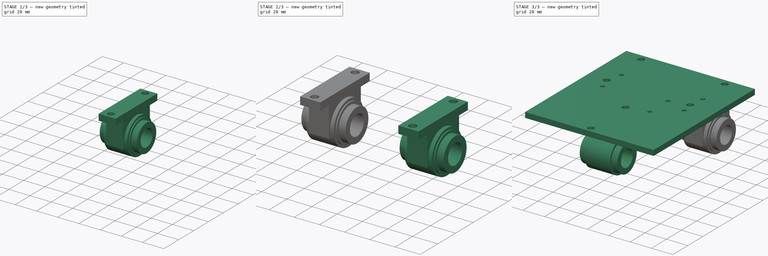
[diagram: build sequence overview — one tinted view per stage of 3, left to right]
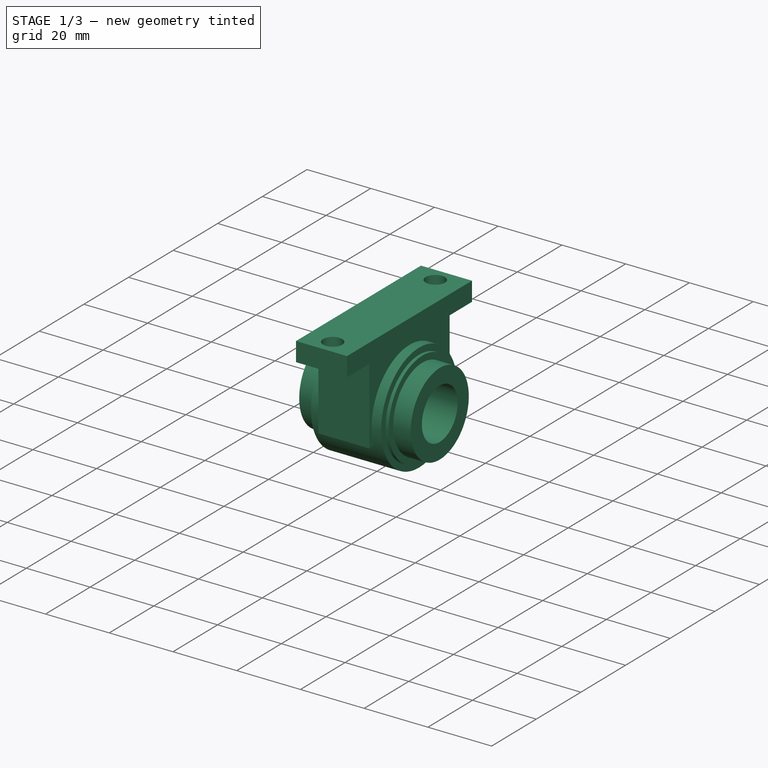
[diagram: stage 1 of 3 — iso view after this stage's code; geometry added in this stage tinted green]
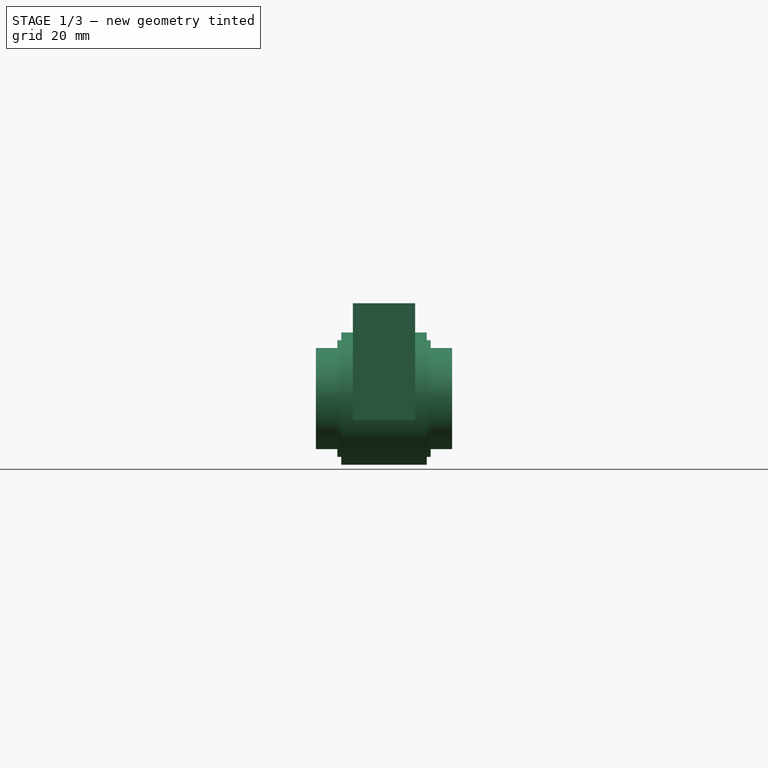
[diagram: stage 1 of 3 — front view after this stage's code; geometry added in this stage tinted green]
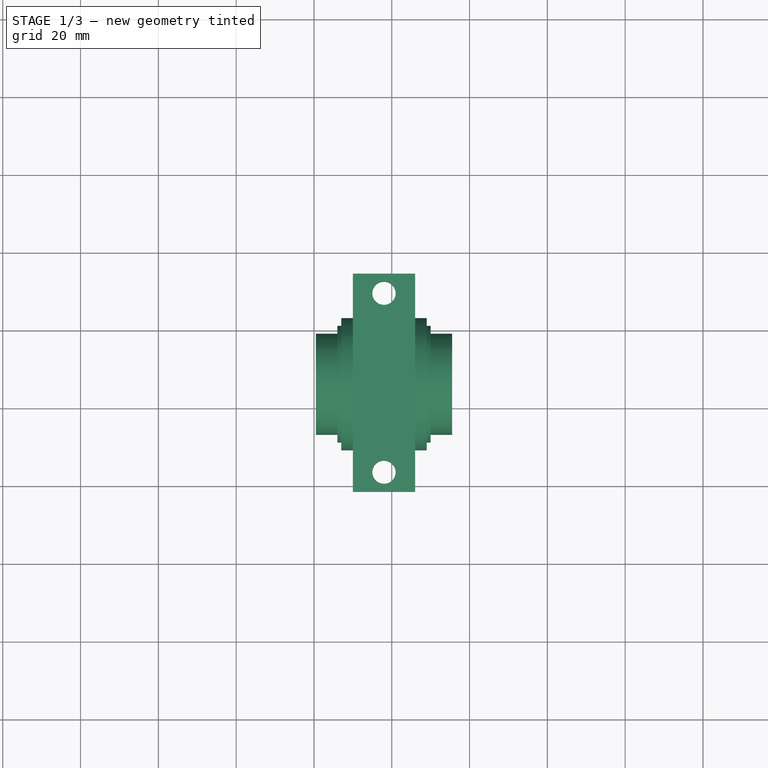
[diagram: stage 1 of 3 — top view after this stage's code; geometry added in this stage tinted green]
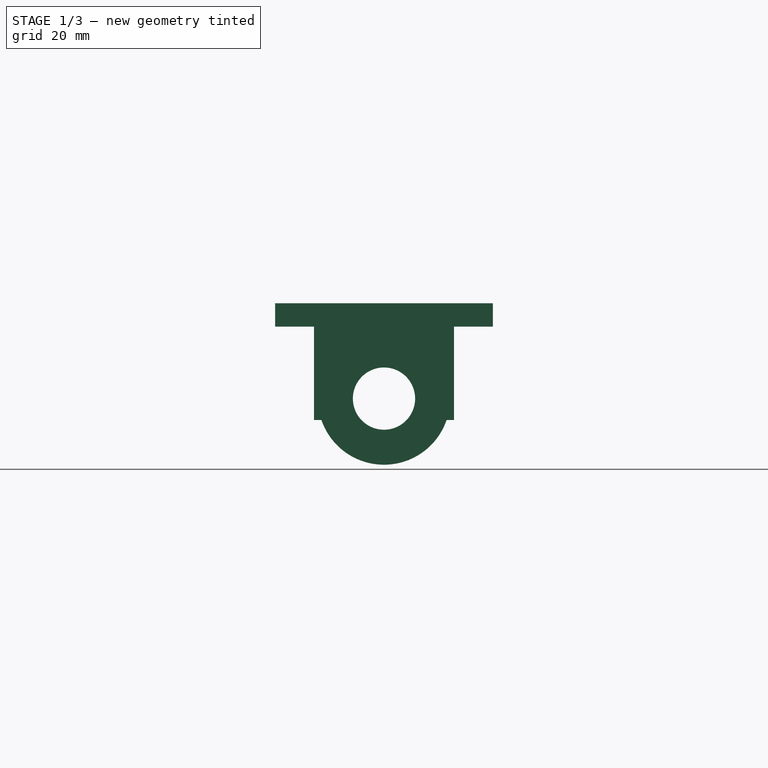
[diagram: stage 1 of 3 — right view after this stage's code; geometry added in this stage tinted green]
FCSTD DOCUMENT  (FreeCAD 0.14R3347 (Git))
Label: Chariot
License: CC-BY 3.0
LicenseURL: http://creativecommons.org/licenses/by/3.0/
objects: PartDesign::Pocket×7, Sketcher::SketchObject×3
note: 17 computed .brp shape members not serialized (recipe doc carries the construction recipe); baked Part::Feature solids carry a one-line shape summary decoded from their .brp

FEATURE [PartDesign::Pocket] Pocket006  label="flasque plastique002"
  Length = 5
  Placement = pos=(18,134,0) rot=(-0.707107,0.707107,0;3.14159rad)
  Sketch = -> Sketch003
  Type = 1
FEATURE [PartDesign::Pocket] Pocket007  label="alu003"
  Length = 5
  Placement = pos=(18,134,0) rot=(-0.707107,0.707107,0;3.14159rad)
  Sketch = -> Sketch004
  Type = 1
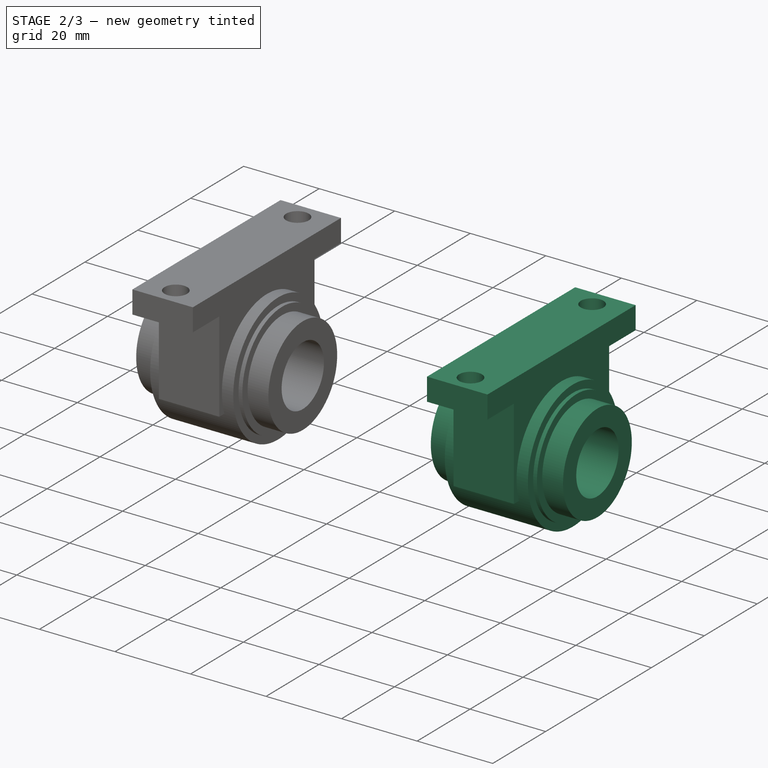
[diagram: stage 2 of 3 — iso view after this stage's code; geometry added in this stage tinted green]
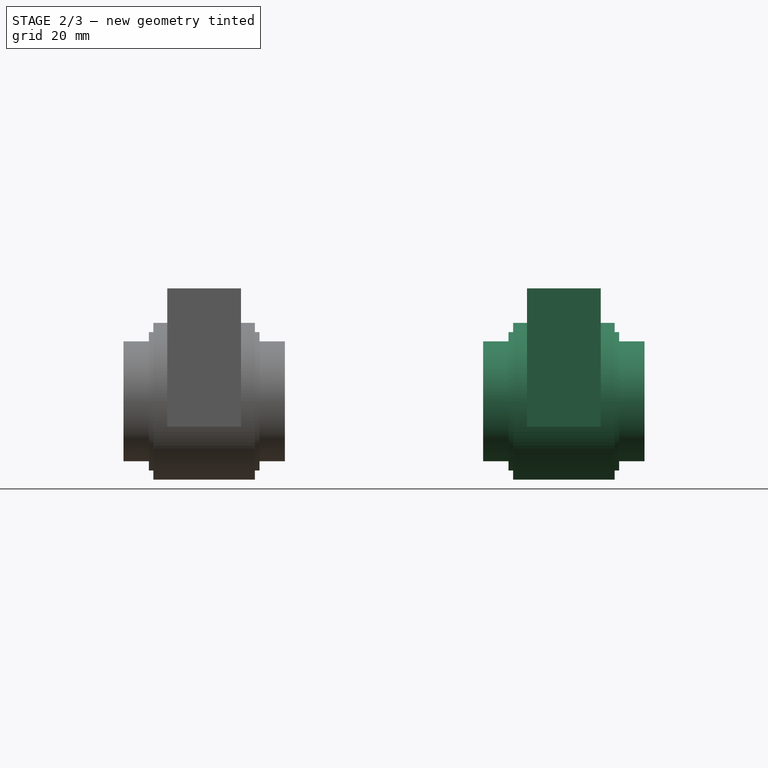
[diagram: stage 2 of 3 — front view after this stage's code; geometry added in this stage tinted green]
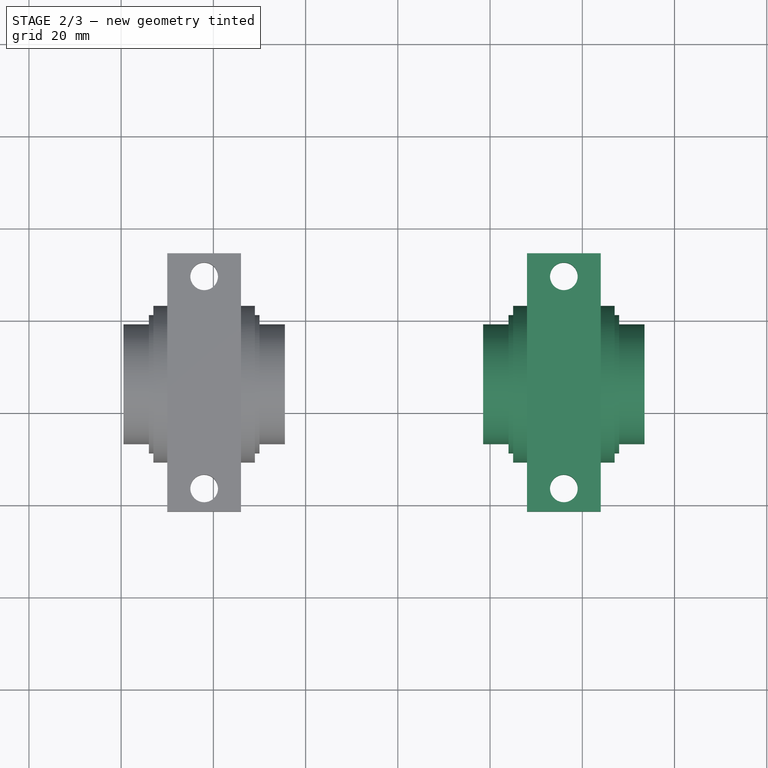
[diagram: stage 2 of 3 — top view after this stage's code; geometry added in this stage tinted green]
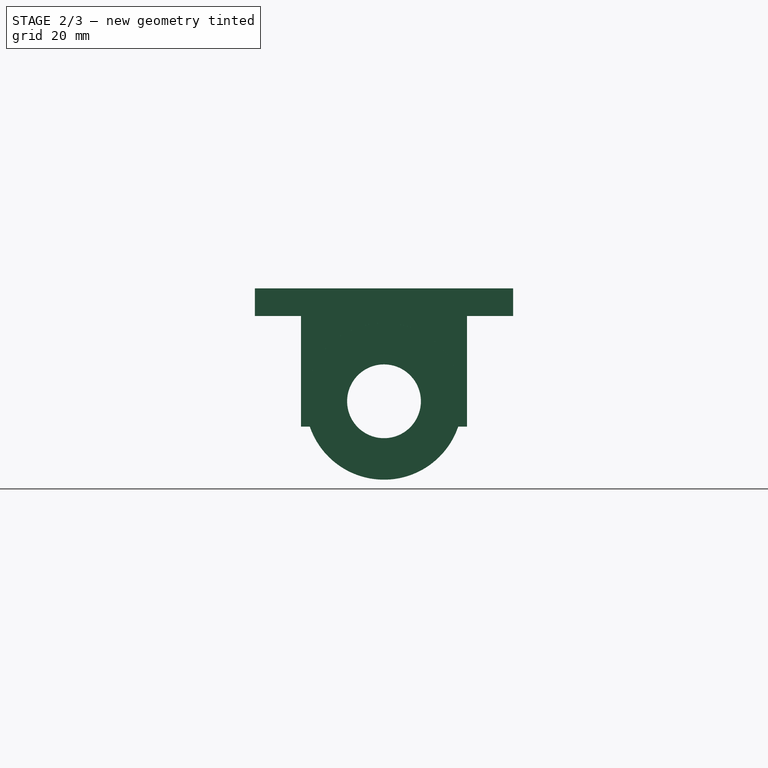
[diagram: stage 2 of 3 — right view after this stage's code; geometry added in this stage tinted green]
FEATURE [PartDesign::Pocket] Pocket004  label="flasque plastique001"
  Length = 5
  Placement = pos=(96,134,0) rot=(-0.707107,0.707107,0;3.14159rad)
  Sketch = -> Sketch003
  Type = 1
FEATURE [PartDesign::Pocket] Pocket002  label="alu001"
  Length = 5
  Placement = pos=(58,56,0) rot=(-0.707107,0.707107,0;3.14159rad)
  Sketch = -> Sketch004
  Type = 1
FEATURE [Sketcher::SketchObject] Sketch004
  Placement = pos=(0,0,6) rot=(0,0,1;0rad)
  Support = -> Pocket002 [Face8]
  sketch-geometry (1):
    g0: Circle CenterX=51 CenterY=0 CenterZ=0 NormalX=0 NormalY=0 NormalZ=1 Radius=3
  constraints (3):
    c: PointOnObject(g0,g-1)
    c: Radius(g0) = 3
    c: DistanceX(g-1,g0) = 51
FEATURE [PartDesign::Pocket] Pocket005  label="alu002"
  Length = 5
  Placement = pos=(96,134,0) rot=(-0.707107,0.707107,0;3.14159rad)
  Sketch = -> Sketch004
  Type = 1
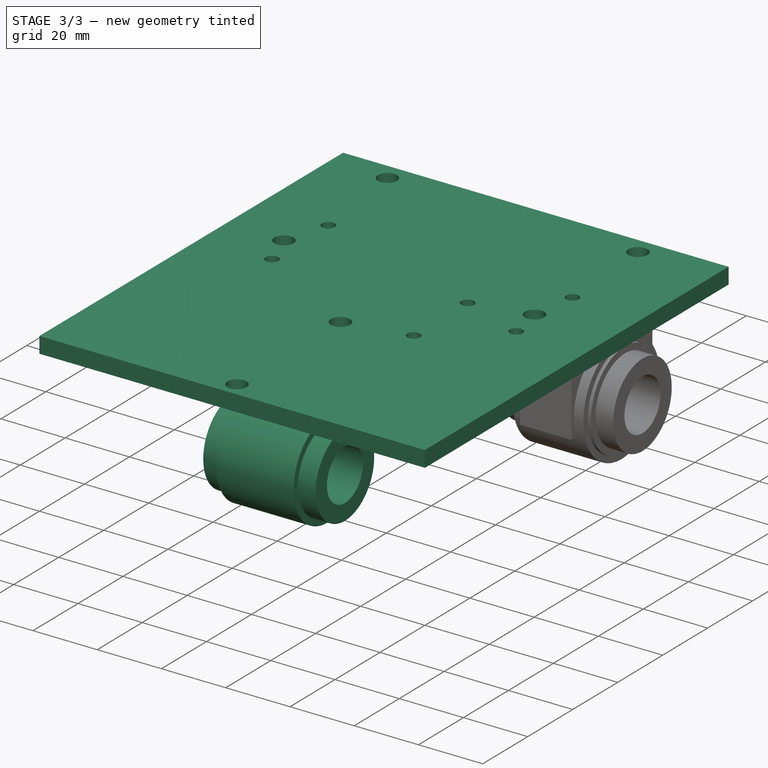
[diagram: stage 3 of 3 — iso view after this stage's code; geometry added in this stage tinted green]
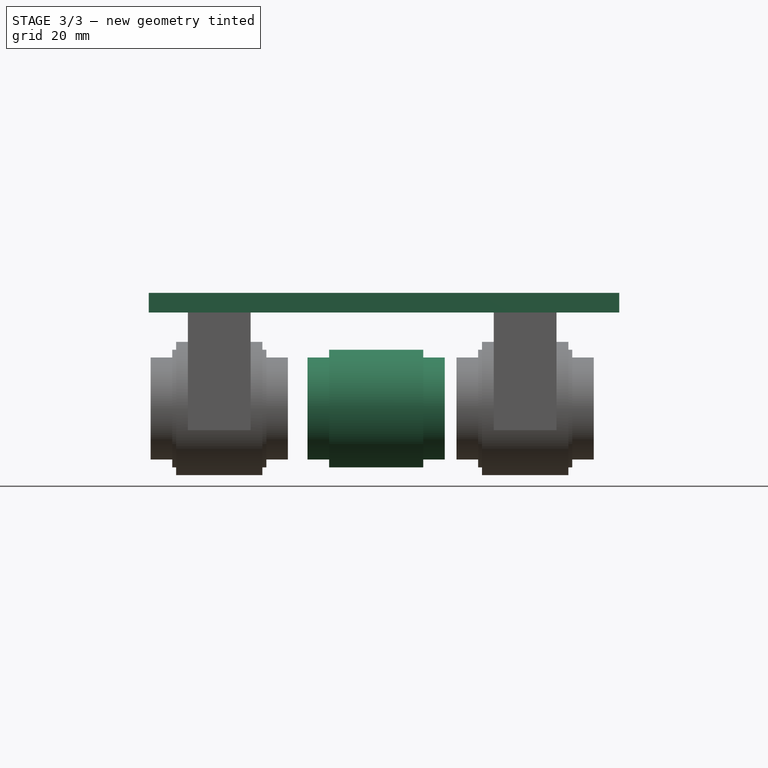
[diagram: stage 3 of 3 — front view after this stage's code; geometry added in this stage tinted green]
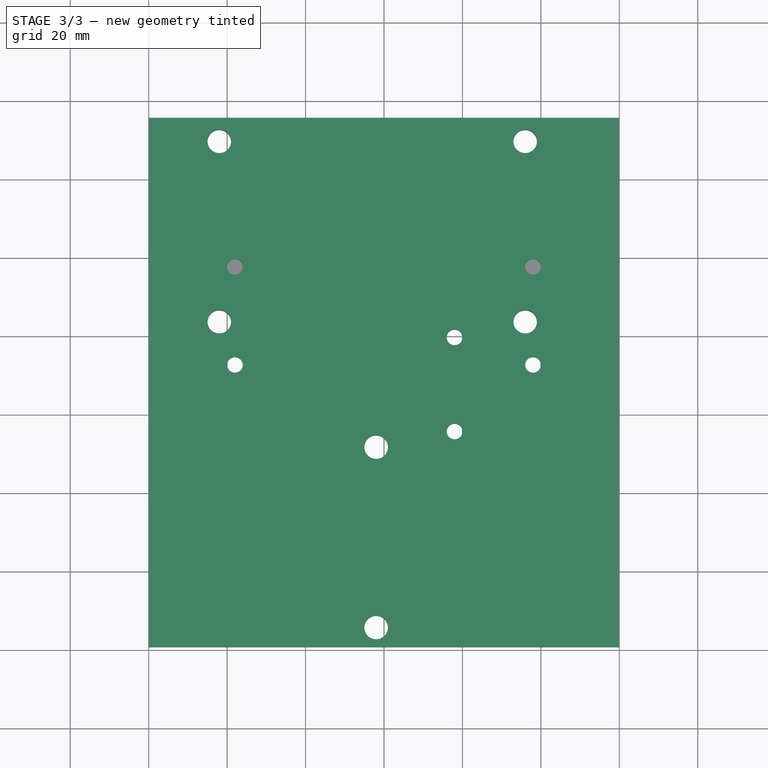
[diagram: stage 3 of 3 — top view after this stage's code; geometry added in this stage tinted green]
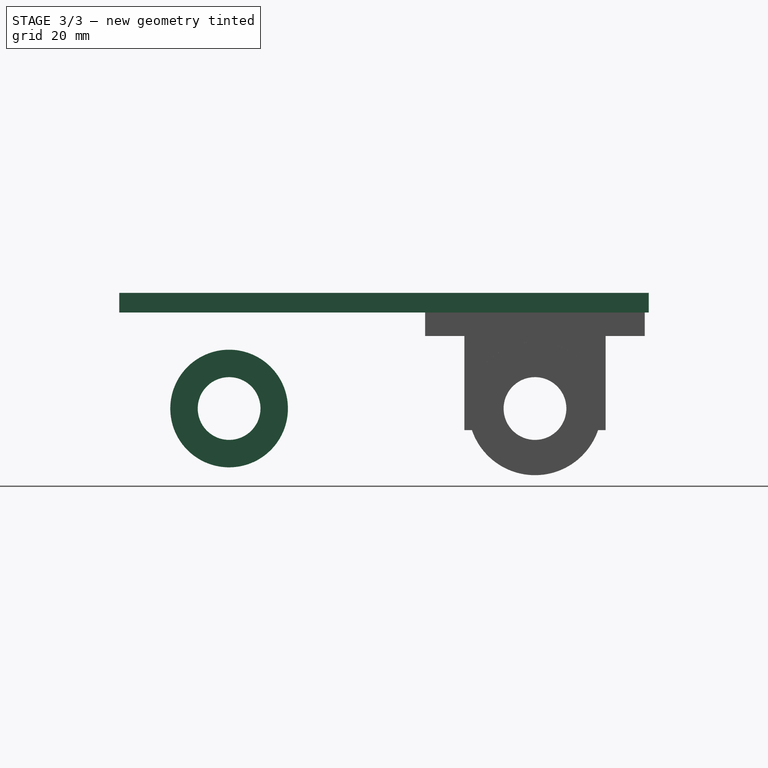
[diagram: stage 3 of 3 — right view after this stage's code; geometry added in this stage tinted green]
FEATURE [Sketcher::SketchObject] Sketch
  Placement = pos=(0,0,5) rot=(0,0,1;0rad)
  sketch-geometry (19):
    g0: LineSegment [constr] StartX=0 StartY=97 StartZ=0 EndX=120 EndY=97 EndZ=0
    g1: LineSegment [constr] StartX=0 StartY=5 StartZ=0 EndX=120 EndY=5 EndZ=0
    g2: LineSegment [constr] StartX=0 StartY=51 StartZ=0 EndX=120 EndY=51 EndZ=0
    g3: LineSegment [constr] StartX=0 StartY=72 StartZ=0 EndX=120 EndY=72 EndZ=0
    g4: LineSegment [constr] StartX=0 StartY=129 StartZ=0 EndX=120 EndY=129 EndZ=0
    g5: LineSegment [constr] StartX=0 StartY=135 StartZ=0 EndX=120 EndY=135 EndZ=0
    g6: LineSegment StartX=120 StartY=135 StartZ=0 EndX=120 EndY=0 EndZ=0
    g7: Circle CenterX=98 CenterY=97 CenterZ=0 NormalX=0 NormalY=0 NormalZ=1 Radius=2
    g8: Circle CenterX=96 CenterY=129 CenterZ=0 NormalX=0 NormalY=0 NormalZ=1 Radius=3
    g9: Circle CenterX=98 CenterY=72 CenterZ=0 NormalX=0 NormalY=0 NormalZ=1 Radius=2
    g10: Circle CenterX=18 CenterY=129 CenterZ=0 NormalX=0 NormalY=0 NormalZ=1 Radius=3
    g11: Circle CenterX=96 CenterY=83 CenterZ=0 NormalX=0 NormalY=0 NormalZ=1 Radius=3
    g12: Circle CenterX=18 CenterY=83 CenterZ=0 NormalX=0 NormalY=0 NormalZ=1 Radius=3
    g13: Circle CenterX=58 CenterY=5 CenterZ=0 NormalX=0 NormalY=0 NormalZ=1 Radius=3
    g14: Circle CenterX=58 CenterY=51 CenterZ=0 NormalX=0 NormalY=0 NormalZ=1 Radius=3
    g15: Circle CenterX=22 CenterY=97 CenterZ=0 NormalX=0 NormalY=0 NormalZ=1 Radius=2
    g16: Circle CenterX=22 CenterY=72 CenterZ=0 NormalX=0 NormalY=0 NormalZ=1 Radius=2
    g17: Circle CenterX=78 CenterY=79 CenterZ=0 NormalX=0 NormalY=0 NormalZ=1 Radius=2
    g18: Circle CenterX=78 CenterY=55 CenterZ=0 NormalX=0 NormalY=0 NormalZ=1 Radius=2
  constraints (63):
    c: PointOnObject(g0,g-2)
    c: Horizontal(g0)
    c: PointOnObject(g1,g-2)
    c: Horizontal(g1)
    c: PointOnObject(g2,g-2)
    c: Horizontal(g2)
    c: PointOnObject(g3,g-2)
    c: Horizontal(g3)
    c: DistanceY(g-1,g1) = 5
    c: DistanceY(g1,g2) = 46
    c: PointOnObject(g4,g-2)
    c: Horizontal(g4)
    c: PointOnObject(g5,g-2)
    c: Horizontal(g5)
    c: DistanceY(g5) = 135
    c: DistanceY(g5,g4) = -6
    c: DistanceY(g5,g0) = -38
    c: DistanceY(g0,g3) = -25
    c: Coincident(g6,g5)
    c: PointOnObject(g6,g-1)
    c: Vertical(g6)
    c: DistanceX(g-1,g6) = 120
    c: PointOnObject(g1,g6)
    c: PointOnObject(g2,g6)
    c: PointOnObject(g3,g6)
    c: PointOnObject(g0,g6)
    c: PointOnObject(g4,g6)
    c: PointOnObject(g7,g0)
    c: Radius(g7) = 2
    c: PointOnObject(g8,g4)
    c: DistanceX(g8,g5) = 24
    c: DistanceX(g7,g0) = 22
    c: PointOnObject(g9,g3)
    c: DistanceX(g9,g3) = 22
    c: PointOnObject(g10,g4)
    c: Equal(g10,g8)
    c: DistanceX(g10,g4) = -18
    c: DistanceY(g11,g8) = 46
    c: DistanceX(g8,g11) = 0
    c: Equal(g11,g8)
    c: Equal(g9,g7)
    c: Radius(g11) = 3
    c: Equal(g12,g10)
    c: DistanceX(g10,g12) = 0
    c: DistanceY(g10,g12) = -46
    c: PointOnObject(g13,g1)
    c: Equal(g13,g12)
    c: DistanceX(g13,g1) = -58
    c: PointOnObject(g14,g2)
    c: Equal(g14,g13)
    c: DistanceX(g14,g13) = 0
    c: PointOnObject(g15,g0)
    c: PointOnObject(g16,g3)
    c: Equal(g16,g15)
    c: Equal(g15,g7)
    c: DistanceX(g16,g15) = 0
    c: DistanceX(g16,g3) = -22
    c: Equal(g17,g18)
    c: Radius(g17) = 2
    c: DistanceX(g18,g17) = 0
    c: DistanceY(g17,g18) = -24
    c: DistanceX(g17,g5) = 42
    c: DistanceY(g17,g5) = 56
FEATURE [PartDesign::Pocket] Pocket
  Length = 5
  Sketch = -> Sketch
  Type = 1
FEATURE [Sketcher::SketchObject] Sketch003  label="guide001"
  Placement = pos=(0,-17.5,0) rot=(1,0,0;1.5708rad)
  sketch-geometry (3):
    g0: LineSegment [constr] StartX=0 StartY=0 StartZ=0 EndX=56 EndY=0 EndZ=0
    g1: LineSegment [constr] StartX=28 StartY=0 StartZ=0 EndX=28 EndY=61.9347 EndZ=0
    g2: Circle CenterX=28 CenterY=24.5 CenterZ=0 NormalX=0 NormalY=0 NormalZ=1 Radius=8
  constraints (10):
    c: Coincident(g0,g-1)
    c: Horizontal(g0)
    c: PointOnObject(g1,g0)
    c: Vertical(g1)
    c: Symmetric(g0,g-1,g1)
    c: DistanceY(g1) = 61.9347
    c: DistanceX(g0) = 56
    c: PointOnObject(g2,g1)
    c: Radius(g2) = 8
    c: DistanceY(g2,g0) = -24.5
FEATURE [PartDesign::Pocket] Pocket003  label="flasque plastique"
  Length = 5
  Placement = pos=(58,56,0) rot=(-0.707107,0.707107,0;3.14159rad)
  Sketch = -> Sketch003
  Type = 1
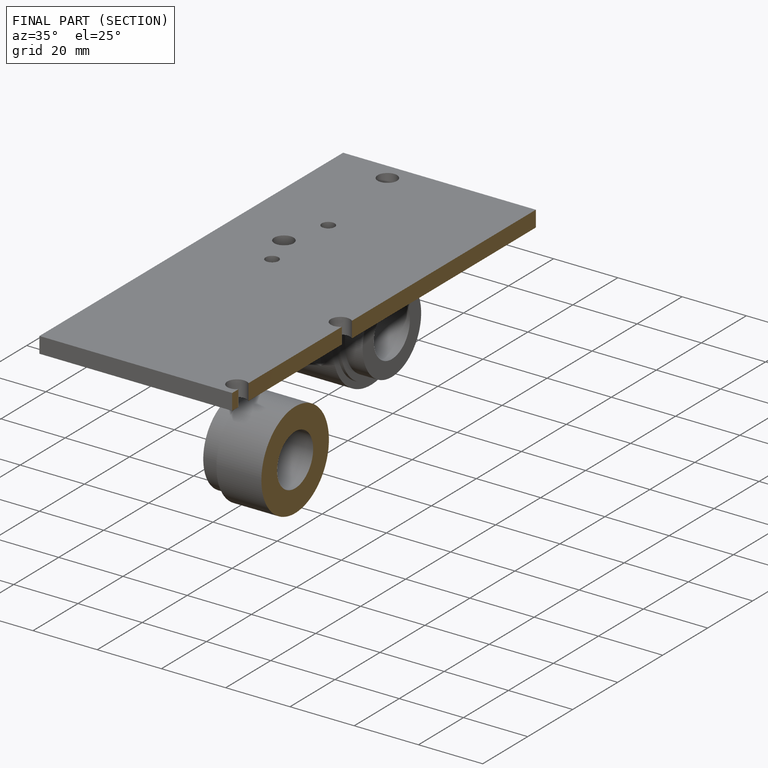
[diagram: finished part — half-section view (interior)]
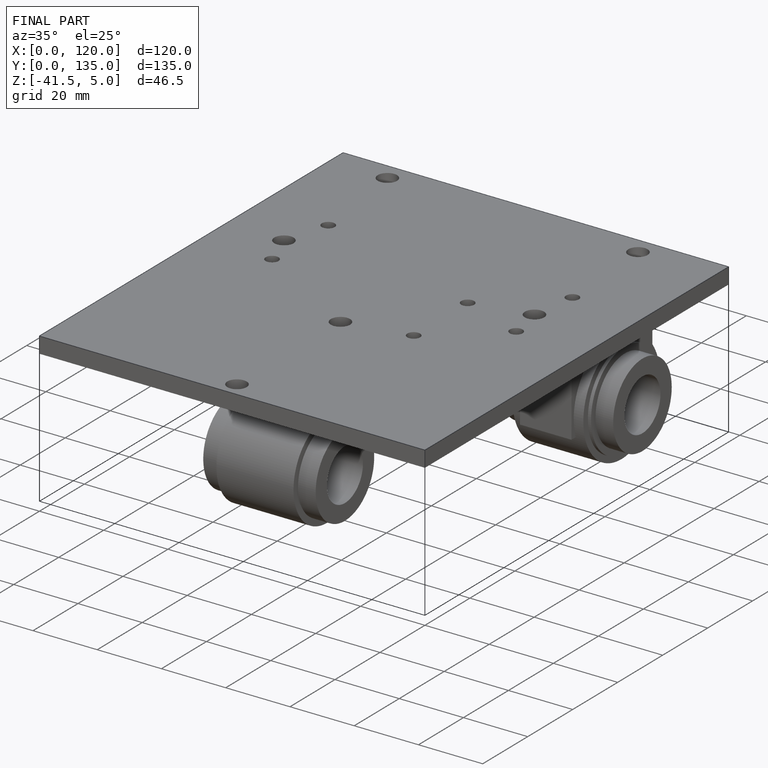
[diagram: finished part — iso view with bounding-box wireframe]
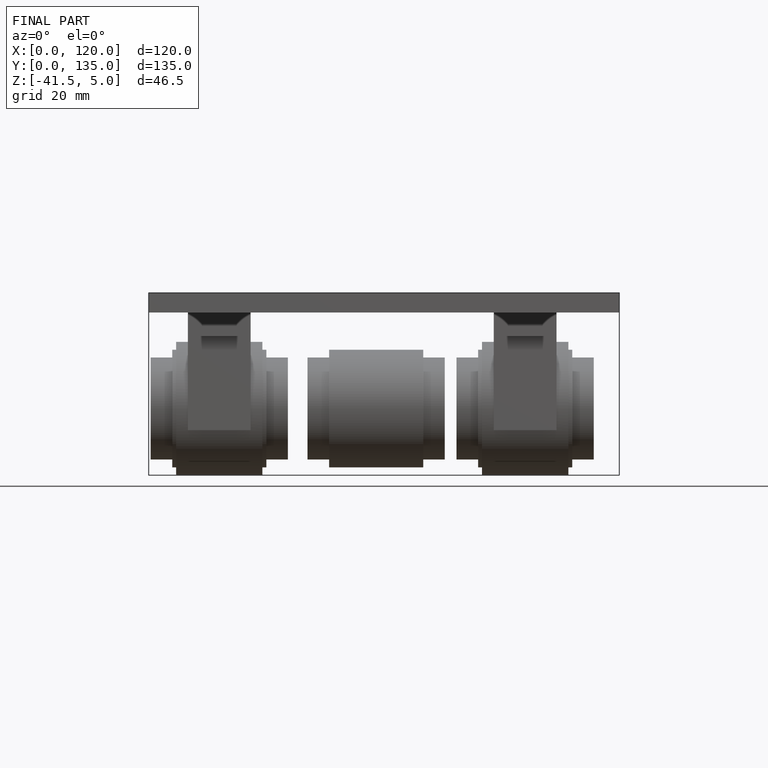
[diagram: finished part — front view with bounding-box wireframe]
